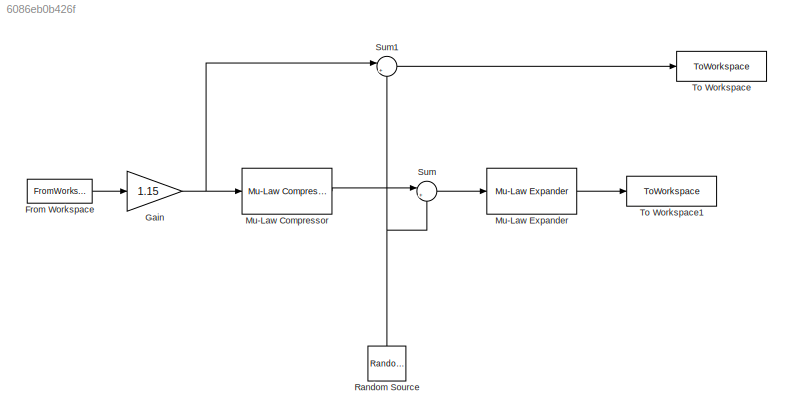
MODEL slx_6086eb0b426f
KIND model
CONFIG AbsTol = auto
CONFIG EnableMultiTasking = off
CONFIG FixedStep = auto
CONFIG MaxStep = auto
CONFIG MinStep = auto
CONFIG RelTol = 1e-3
CONFIG SampleTimeConstraint = Unconstrained
CONFIG SolverName = VariableStepAuto
CONFIG StartTime = 0.0
CONFIG StopTime = 10.0
BLOCK [FromWorkspace] From Workspace
  SampleTime = 1/16000
  VariableName = Sonf16
BLOCK [Gain] Gain
  Gain = 1.15
BLOCK [Reference] Mu-Law Compressor  REF=commsrccod2/Mu-Law
Compressor
  Ports = [1, 1]
  SourceBlock = commsrccod2/Mu-Law\nCompressor
  SourceProductBaseCode = CM
  SourceType = Mu-Law Compressor
BLOCK [Reference] Mu-Law Expander  REF=commsrccod2/Mu-Law
Expander
  Ports = [1, 1]
  SourceBlock = commsrccod2/Mu-Law\nExpander
  SourceProductBaseCode = CM
  SourceType = Mu-Law Expander
BLOCK [Reference] Random Source  REF=dspsrcs4/Random
Source
  NameLocation = right
  Ports = [0, 1]
  SourceBlock = dspsrcs4/Random\nSource
  SourceProductBaseCode = DS
  SourceType = Random Source
  UserDataPersistent = on
BLOCK [Sum] Sum
  Inputs = |++
  Ports = [2, 1]
BLOCK [Sum] Sum1
  Inputs = |++
  Ports = [2, 1]
BLOCK [ToWorkspace] To Workspace
  FixptAsFi = on
  MaxDataPoints = inf
  Ports = [1]
  SampleTime = -1
  Save2DSignal = 2-D array (concatenate along first dimension)
  VariableName = SansComp
BLOCK [ToWorkspace] To Workspace1
  FixptAsFi = on
  MaxDataPoints = inf
  Ports = [1]
  SampleTime = -1
  Save2DSignal = 2-D array (concatenate along first dimension)
  VariableName = AvecComp
LINE From Workspace:1 -> Gain:1
NET Gain:1 -> Mu-Law Compressor:1, Sum1:1
LINE Mu-Law Compressor:1 -> Sum:1
LINE Mu-Law Expander:1 -> To Workspace1:1
NET Random Source:1 -> Sum1:2, Sum:2
LINE Sum1:1 -> To Workspace:1
LINE Sum:1 -> Mu-Law Expander:1
note: NET lines group one-source signal fan-out (src -> all destinations, sorted); 1:1 wires keep LINE
